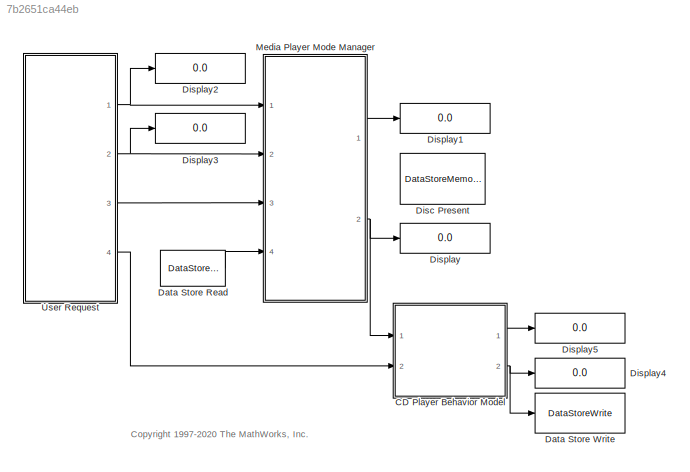
MODEL slx_7b2651ca44eb
KIND model
CONFIG AbsTol = auto
CONFIG EnableMultiTasking = on
CONFIG FixedStep = 1
CONFIG MaxStep = auto
CONFIG MinStep = auto
CONFIG PreLoadFcn = defaultRadioRequestMode = RadioRequestMode.OFF;\ndefaultCdRequestMode = CdRequestMode.EMPTY;\n
CONFIG RelTol = 1e-3
CONFIG SampleTimeConstraint = Unconstrained
CONFIG SolverName = FixedStepDiscrete
CONFIG StartFcn = clear sfcdplayerhelper;\nsfcdplayergui;\n
CONFIG StartTime = 0.0
CONFIG StopFcn = delete(sfcdplayergui);
CONFIG StopTime = inf
WORKSPACE source: MATLAB code (in-file)
WORKSPACE Ts = 0.01
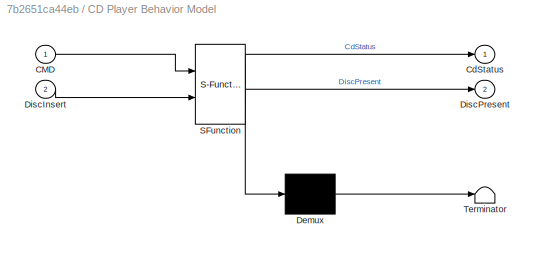
BLOCK [SubSystem] CD Player Behavior Model
  ErrorFcn = Stateflow.Translate.translate
  PermitHierarchicalResolution = ExplicitOnly
  Ports = [2, 2]
  RequestExecContextInheritance = off
  SFBlockType = Chart
  TreatAsAtomicUnit = on
BLOCK [Demux] CD Player Behavior Model/ Demux 
  Outputs = 1
  Ports = [1, 1]
BLOCK [Outport] CD Player Behavior Model/ DiscPresent
  Port = 2
  VectorParamsAs1DForOutWhenUnconnected = off
BLOCK [S-Function] CD Player Behavior Model/ SFunction 
  EnableBusSupport = off
  FunctionName = sf_sfun
  PortCounts = [2 3]
  Ports = [2, 3]
  SFcnIsStateOwnerBlock = off
  SFunctionDeploymentMode = off
  Tag = Stateflow S-Function 4
BLOCK [Terminator] CD Player Behavior Model/ Terminator 
BLOCK [Inport] CD Player Behavior Model/CMD
BLOCK [Outport] CD Player Behavior Model/CdStatus
  VectorParamsAs1DForOutWhenUnconnected = off
BLOCK [Inport] CD Player Behavior Model/DiscInsert
  Port = 2
BLOCK [DataStoreRead] Data Store Read
  DataStoreName = DiscPresent
  Ports = [0, 1]
  SampleTime = 0
BLOCK [DataStoreWrite] Data Store Write
  DataStoreName = DiscPresent
  Ports = [1]
BLOCK [DataStoreMemory] Disc Present
  DataStoreName = DiscPresent
  ShowAdditionalParam = off
BLOCK [Display] Display
  Decimation = 1
  Ports = [1]
BLOCK [Display] Display1
  Decimation = 1
  Ports = [1]
BLOCK [Display] Display2
  Decimation = 1
  Ports = [1]
BLOCK [Display] Display3
  Decimation = 1
  Ports = [1]
BLOCK [Display] Display4
  Decimation = 1
  Ports = [1]
BLOCK [Display] Display5
  Decimation = 1
  Ports = [1]
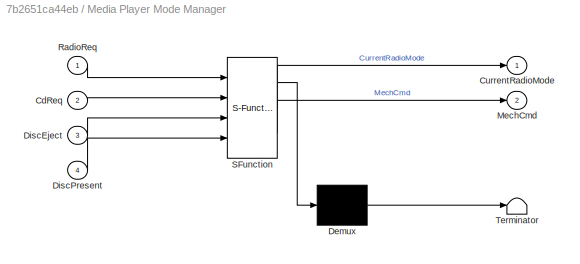
BLOCK [SubSystem] Media Player Mode Manager
  ErrorFcn = Stateflow.Translate.translate
  PermitHierarchicalResolution = ExplicitOnly
  Ports = [4, 2]
  RequestExecContextInheritance = off
  SFBlockType = Chart
  TreatAsAtomicUnit = on
BLOCK [Demux] Media Player Mode Manager/ Demux 
  Outputs = 1
  Ports = [1, 1]
BLOCK [S-Function] Media Player Mode Manager/ SFunction 
  EnableBusSupport = off
  FunctionName = sf_sfun
  PortCounts = [4 3]
  Ports = [4, 3]
  SFcnIsStateOwnerBlock = off
  SFunctionDeploymentMode = off
  Tag = Stateflow S-Function 1
BLOCK [Terminator] Media Player Mode Manager/ Terminator 
BLOCK [Inport] Media Player Mode Manager/CdReq
  Port = 2
BLOCK [Outport] Media Player Mode Manager/CurrentRadioMode
  VectorParamsAs1DForOutWhenUnconnected = off
BLOCK [Inport] Media Player Mode Manager/DiscEject
  Port = 3
BLOCK [Inport] Media Player Mode Manager/DiscPresent
  Port = 4
BLOCK [Outport] Media Player Mode Manager/MechCmd
  Port = 2
  VectorParamsAs1DForOutWhenUnconnected = off
BLOCK [Inport] Media Player Mode Manager/RadioReq
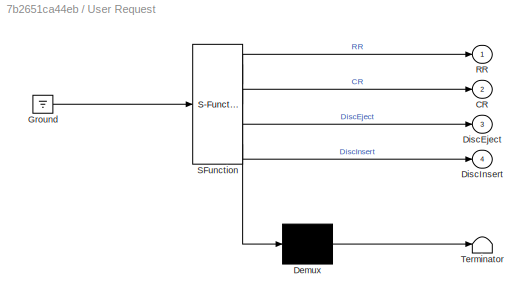
BLOCK [SubSystem] User Request
  ErrorFcn = Stateflow.Translate.translate
  PermitHierarchicalResolution = ExplicitOnly
  Ports = [0, 4]
  RequestExecContextInheritance = off
  SFBlockType = Chart
  TreatAsAtomicUnit = on
BLOCK [Demux] User Request/ Demux 
  Outputs = 1
  Ports = [1, 1]
BLOCK [Ground] User Request/ Ground 
BLOCK [S-Function] User Request/ SFunction 
  EnableBusSupport = off
  FunctionName = sf_sfun
  PortCounts = [1 5]
  Ports = [1, 5]
  SFcnIsStateOwnerBlock = off
  SFunctionDeploymentMode = off
  Tag = Stateflow S-Function 2
BLOCK [Terminator] User Request/ Terminator 
BLOCK [Outport] User Request/CR
  Port = 2
  VectorParamsAs1DForOutWhenUnconnected = off
BLOCK [Outport] User Request/DiscEject
  Port = 3
  VectorParamsAs1DForOutWhenUnconnected = off
BLOCK [Outport] User Request/DiscInsert
  Port = 4
  VectorParamsAs1DForOutWhenUnconnected = off
BLOCK [Outport] User Request/RR
  VectorParamsAs1DForOutWhenUnconnected = off
ANNOTATION (root): <copyright redacted>
LINE CD Player Behavior Model:1 -> Display5:1
NET CD Player Behavior Model:2 -> Data Store Write:1, Display4:1
LINE Data Store Read:1 -> Media Player Mode Manager:4
LINE Media Player Mode Manager:1 -> Display1:1
NET Media Player Mode Manager:2 -> CD Player Behavior Model:1, Display:1
NET User Request:1 -> Display2:1, Media Player Mode Manager:1
NET User Request:2 -> Display3:1, Media Player Mode Manager:2
LINE User Request:3 -> Media Player Mode Manager:3
LINE User Request:4 -> CD Player Behavior Model:2
note: NET lines group one-source signal fan-out (src -> all destinations, sorted); 1:1 wires keep LINE
CHART Media Player
Mode Manager states=12 transitions=22
  STATE_LABEL 'ModeManager'
  STATE_LABEL 'Standby\nentry: CurrentRadioMode = OFF;\nMechCmd = STOP;'
  STATE_LABEL 'ON'
  STATE_LABEL 'CDMode\nen:\nCurrentRadioMode = CD;\nMechCmd = STOP;\nex: MechCmd = STOP;'
  STATE_LABEL 'Play'
  STATE_LABEL 'Normal\nentry: MechCmd = PLAY;'
  STATE_LABEL 'Rew\nentry: MechCmd = REW;'
  STATE_LABEL 'FastForward\nentry: MechCmd = FF;'
  STATE_LABEL '[CdReq == PLAY && !in(Normal)]'
  STATE_LABEL '[CdReq == REW && !in(Rew)]'
  STATE_LABEL '[CdReq == FF && !in(FastForward)]'
  STATE_LABEL 'Stop\nentry: MechCmd = STOP;'
  STATE_LABEL '[DiscPresent]'
  STATE_LABEL '[CdReq==STOP]'
  STATE_LABEL '[DiscPresent && CdReq==PLAY]'
  STATE_LABEL 'AMMode\nentry:\nCurrentRadioMode = AM;\nMechCmd = STOP;'
  STATE_LABEL 'FMMode\nentry:\nCurrentRadioMode = FM;\nMechCmd = STOP;'
  STATE_LABEL '[hasChanged(RadioReq)]'
  STATE_LABEL '[RadioReq==CD]'
  STATE_LABEL '[RadioReq==AM]'
  STATE_LABEL '/*RadioReq==FM*/'
  STATE_LABEL 'H'
  STATE_LABEL '[RadioReq != OFF]'
  STATE_LABEL '[RadioReq == OFF]'
  STATE_LABEL 'H'
  STATE_LABEL 'Standby\nentry: CurrentRadioMode = OFF;\nMechCmd = STOP;'
  STATE_LABEL 'ON'
  STATE_LABEL 'CDMode\nen:\nCurrentRadioMode = CD;\nMechCmd = STOP;\nex: MechCmd = STOP;'
  STATE_LABEL 'Play'
  STATE_LABEL 'Normal\nentry: MechCmd = PLAY;'
  STATE_LABEL 'Rew\nentry: MechCmd = REW;'
  STATE_LABEL 'FastForward\nentry: MechCmd = FF;'
  STATE_LABEL '[CdReq == PLAY && !in(Normal)]'
  STATE_LABEL '[CdReq == REW && !in(Rew)]'
  STATE_LABEL '[CdReq == FF && !in(FastForward)]'
  STATE_LABEL 'Stop\nentry: MechCmd = STOP;'
  STATE_LABEL '[DiscPresent]'
  STATE_LABEL '[CdReq==STOP]'
  STATE_LABEL '[DiscPresent && CdReq==PLAY]'
  STATE_LABEL 'AMMode\nentry:\nCurrentRadioMode = AM;\nMechCmd = STOP;'
CHART User Request states=0 transitions=1
CHART CD Player
Behavior Model states=8 transitions=10
  STATE_LABEL 'Empty\nentry: CdStatus = EMPTY;'
  STATE_LABEL 'Inserting\nentry: CdStatus = DISCINSERT;'
  STATE_LABEL 'Ejecting\nentry: CdStatus = EJECT;'
  STATE_LABEL 'DiscPresent'
  STATE_LABEL 'STOP\nentry: CdStatus = STOP;'
  STATE_LABEL 'PLAY\nentry: CdStatus = PLAY;'
  STATE_LABEL 'FF\nentry: CdStatus = FF;'
  STATE_LABEL 'REW\nentry: CdStatus = REW;'
  STATE_LABEL '[CMD == STOP]'
  STATE_LABEL '[CMD == PLAY]'
  STATE_LABEL '[CMD == FF]'
  STATE_LABEL '[CMD == REW]'
  STATE_LABEL 'STOP\nentry: CdStatus = STOP;'
  STATE_LABEL 'PLAY\nentry: CdStatus = PLAY;'
  STATE_LABEL 'FF\nentry: CdStatus = FF;'
  STATE_LABEL 'REW\nentry: CdStatus = REW;'
CHART  states=0 transitions=0
CHART  states=0 transitions=0
CHART  states=0 transitions=0
